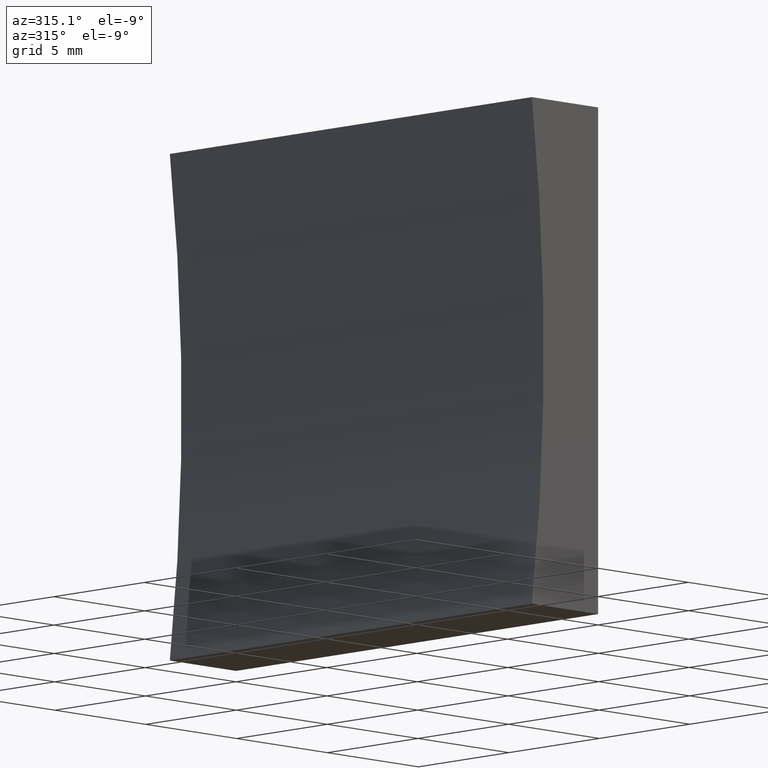
[diagram: clean part render]
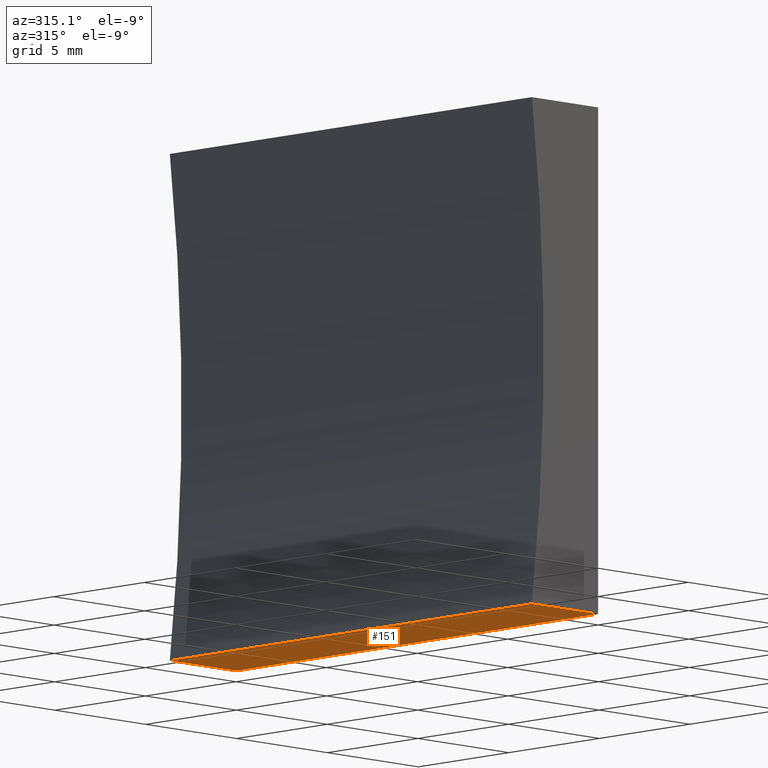
[diagram: same view with one face highlighted and labeled with its STEP entity id]
A machine part, auxiliary view. The second image highlights one B-rep face of the part: STEP entity #151.
In plain terms, the highlighted planar face has unit normal (-0, 0, 1).
Its self-contained STEP definition (entity closure, byte-faithful):
#7 = ORIENTED_EDGE ( 'NONE', *, *, #35, .F. ) ;
#11 = ORIENTED_EDGE ( 'NONE', *, *, #118, .F. ) ;
#12 = CARTESIAN_POINT ( 'NONE',  ( 0.0000000000000000000, 0.0000000000000000000, 0.0000000000000000000 ) ) ;
#19 = VERTEX_POINT ( 'NONE', #65 ) ;
#26 = LINE ( 'NONE', #130, #191 ) ;
#29 = VECTOR ( 'NONE', #44, 1000.000000000000000 ) ;
#35 = EDGE_CURVE ( 'NONE', #19, #166, #104, .T. ) ;
#36 = FACE_OUTER_BOUND ( 'NONE', #123, .T. ) ;
#37 = LINE ( 'NONE', #12, #29 ) ;
#38 = VECTOR ( 'NONE', #40, 1000.000000000000000 ) ;
#39 = CARTESIAN_POINT ( 'NONE',  ( -3.647448026739705400, 20.00000000000000000, -3.469446951953614200E-015 ) ) ;
#40 = DIRECTION ( 'NONE',  ( -0.0000000000000000000, -1.000000000000000000, -0.0000000000000000000 ) ) ;
#44 = DIRECTION ( 'NONE',  ( -1.000000000000000000, 0.0000000000000000000, -9.511984616419059400E-016 ) ) ;
#48 = AXIS2_PLACEMENT_3D ( 'NONE', #99, #146, #168 ) ;
#53 = LINE ( 'NONE', #39, #38 ) ;
#65 = CARTESIAN_POINT ( 'NONE',  ( 0.0000000000000000000, 20.00000000000000000, 0.0000000000000000000 ) ) ;
#97 = VECTOR ( 'NONE', #141, 1000.000000000000000 ) ;
#99 = CARTESIAN_POINT ( 'NONE',  ( 0.0000000000000000000, 20.00000000000000000, 0.0000000000000000000 ) ) ;
#104 = LINE ( 'NONE', #105, #97 ) ;
#105 = CARTESIAN_POINT ( 'NONE',  ( 0.0000000000000000000, 20.00000000000000000, 0.0000000000000000000 ) ) ;
#118 = EDGE_CURVE ( 'NONE', #166, #164, #53, .T. ) ;
#119 = EDGE_CURVE ( 'NONE', #129, #164, #37, .T. ) ;
#123 = EDGE_LOOP ( 'NONE', ( #173, #11, #7, #160 ) ) ;
#129 = VERTEX_POINT ( 'NONE', #144 ) ;
#130 = CARTESIAN_POINT ( 'NONE',  ( 0.0000000000000000000, 20.00000000000000000, 0.0000000000000000000 ) ) ;
#136 = EDGE_CURVE ( 'NONE', #19, #129, #26, .T. ) ;
#141 = DIRECTION ( 'NONE',  ( -1.000000000000000000, 0.0000000000000000000, -9.511984616419059400E-016 ) ) ;
#144 = CARTESIAN_POINT ( 'NONE',  ( 0.0000000000000000000, 0.0000000000000000000, 0.0000000000000000000 ) ) ;
#146 = DIRECTION ( 'NONE',  ( -9.511984616419059400E-016, 0.0000000000000000000, 1.000000000000000000 ) ) ;
#147 = CARTESIAN_POINT ( 'NONE',  ( -3.647448026739705400, 20.00000000000000000, -3.469446951953614200E-015 ) ) ;
#151 = ADVANCED_FACE ( 'NONE', ( #36 ), #171, .F. ) ;
#158 = DIRECTION ( 'NONE',  ( -0.0000000000000000000, -1.000000000000000000, -0.0000000000000000000 ) ) ;
#160 = ORIENTED_EDGE ( 'NONE', *, *, #136, .T. ) ;
#164 = VERTEX_POINT ( 'NONE', #170 ) ;
#166 = VERTEX_POINT ( 'NONE', #147 ) ;
#168 = DIRECTION ( 'NONE',  ( 1.000000000000000000, 0.0000000000000000000, 9.511984616419059400E-016 ) ) ;
#170 = CARTESIAN_POINT ( 'NONE',  ( -3.647448026739705400, 0.0000000000000000000, -3.469446951953614200E-015 ) ) ;
#171 = PLANE ( 'NONE',  #48 ) ;
#173 = ORIENTED_EDGE ( 'NONE', *, *, #119, .T. ) ;
#191 = VECTOR ( 'NONE', #158, 1000.000000000000000 ) ;